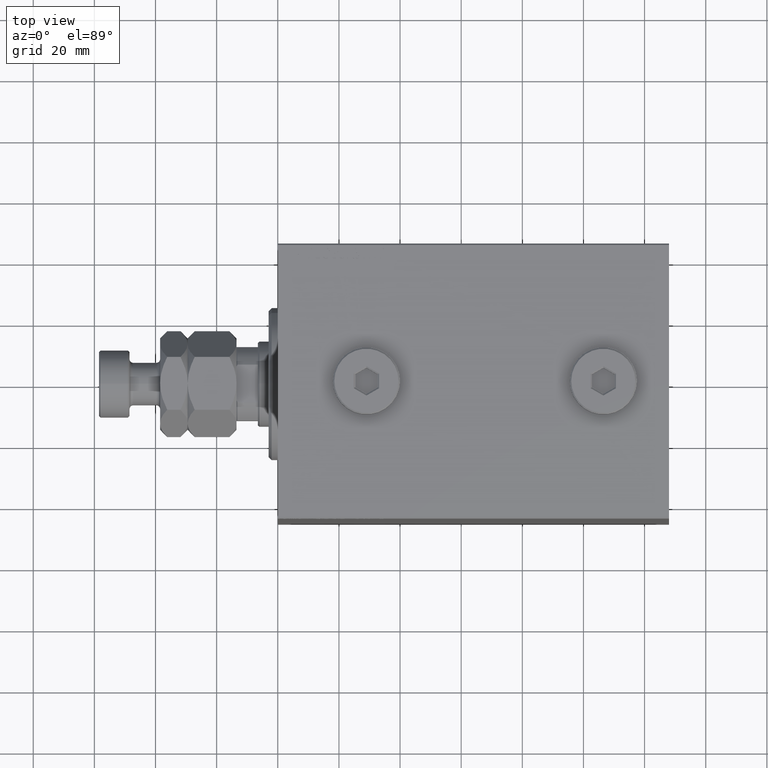
[diagram: clean part render]
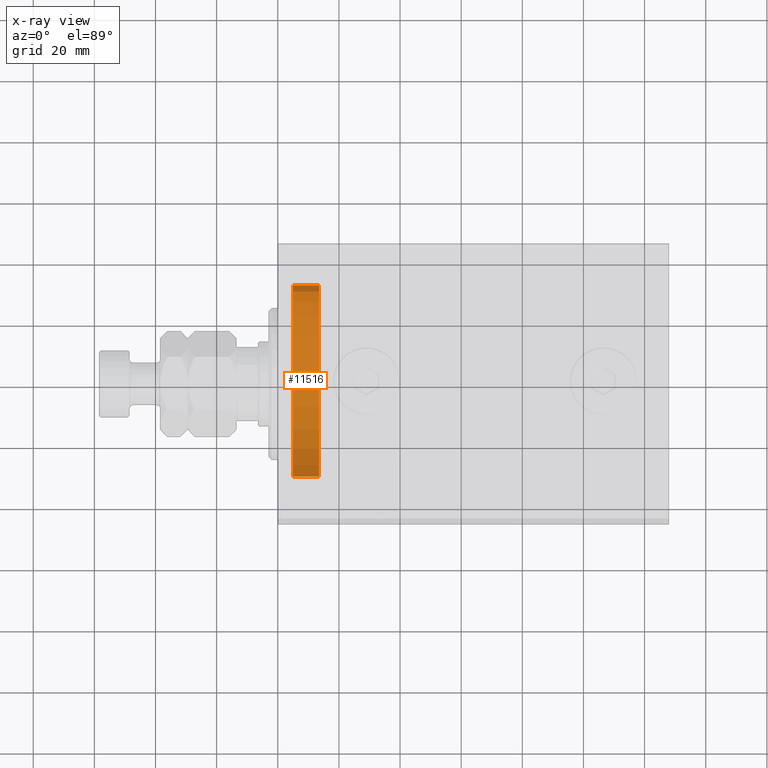
[diagram: x-ray — body ghosted, one internal face saturated and labeled with its STEP entity id]
A machine part, top view, then the same camera in x-ray: the body is ghosted and one INTERNAL B-rep face — a face not visible from any outside direction — is saturated and labeled: STEP entity #11516.
In plain terms, the highlighted cylindrical surface (partial cylindrical patch) has radius 32.5 mm, axis along (-1, 0, 0).
Its self-contained STEP definition (entity closure, byte-faithful):
#380 = AXIS2_PLACEMENT_3D ( 'NONE', #45614, #13505, #38708 ) ;
#657 = CARTESIAN_POINT ( 'NONE',  ( -5.000000000000000000, 0.000000000000000000, -32.50000000000000000 ) ) ;
#1183 = LINE ( 'NONE', #11647, #44932 ) ;
#1260 = AXIS2_PLACEMENT_3D ( 'NONE', #23852, #41441, #38339 ) ;
#2206 = CYLINDRICAL_SURFACE ( 'NONE', #1260, 32.50000000000000000 ) ;
#4760 = DIRECTION ( 'NONE',  ( 1.000000000000000000, -0.000000000000000000, -0.000000000000000000 ) ) ;
#9758 = VERTEX_POINT ( 'NONE', #26008 ) ;
#11516 = ADVANCED_FACE ( 'NONE', ( #26938 ), #2206, .T. ) ;
#11647 = CARTESIAN_POINT ( 'NONE',  ( -13.50000000000000178, 0.000000000000000000, -32.50000000000000000 ) ) ;
#12758 = CIRCLE ( 'NONE', #30977, 32.50000000000000000 ) ;
#13505 = DIRECTION ( 'NONE',  ( -1.000000000000000000, 0.000000000000000000, 0.000000000000000000 ) ) ;
#13705 = EDGE_CURVE ( 'NONE', #9758, #42597, #17079, .T. ) ;
#15059 = ORIENTED_EDGE ( 'NONE', *, *, #21206, .T. ) ;
#16796 = CARTESIAN_POINT ( 'NONE',  ( -5.000000000000000000, 3.980102097228898626E-15, 32.50000000000000000 ) ) ;
#17079 = CIRCLE ( 'NONE', #380, 32.50000000000000000 ) ;
#19081 = VERTEX_POINT ( 'NONE', #657 ) ;
#20411 = ORIENTED_EDGE ( 'NONE', *, *, #22841, .T. ) ;
#20703 = CARTESIAN_POINT ( 'NONE',  ( -5.000000000000000000, 0.000000000000000000, 0.000000000000000000 ) ) ;
#21206 = EDGE_CURVE ( 'NONE', #9758, #35193, #32674, .T. ) ;
#22841 = EDGE_CURVE ( 'NONE', #35193, #19081, #12758, .T. ) ;
#23502 = ORIENTED_EDGE ( 'NONE', *, *, #13705, .F. ) ;
#23852 = CARTESIAN_POINT ( 'NONE',  ( -13.50000000000000178, 0.000000000000000000, 0.000000000000000000 ) ) ;
#26008 = CARTESIAN_POINT ( 'NONE',  ( -13.50000000000000178, 3.980102097228898626E-15, 32.50000000000000000 ) ) ;
#26938 = FACE_OUTER_BOUND ( 'NONE', #44769, .T. ) ;
#27208 = ORIENTED_EDGE ( 'NONE', *, *, #36262, .F. ) ;
#30977 = AXIS2_PLACEMENT_3D ( 'NONE', #20703, #43029, #35898 ) ;
#32674 = LINE ( 'NONE', #36482, #40083 ) ;
#35193 = VERTEX_POINT ( 'NONE', #16796 ) ;
#35898 = DIRECTION ( 'NONE',  ( 0.000000000000000000, 0.000000000000000000, 1.000000000000000000 ) ) ;
#36113 = CARTESIAN_POINT ( 'NONE',  ( -13.50000000000000178, 0.000000000000000000, -32.50000000000000000 ) ) ;
#36262 = EDGE_CURVE ( 'NONE', #42597, #19081, #1183, .T. ) ;
#36482 = CARTESIAN_POINT ( 'NONE',  ( -13.50000000000000178, 3.980102097228898626E-15, 32.50000000000000000 ) ) ;
#38339 = DIRECTION ( 'NONE',  ( 0.000000000000000000, 0.000000000000000000, -1.000000000000000000 ) ) ;
#38708 = DIRECTION ( 'NONE',  ( 0.000000000000000000, 0.000000000000000000, 1.000000000000000000 ) ) ;
#40083 = VECTOR ( 'NONE', #46230, 1000.000000000000000 ) ;
#41441 = DIRECTION ( 'NONE',  ( 1.000000000000000000, -0.000000000000000000, -0.000000000000000000 ) ) ;
#42597 = VERTEX_POINT ( 'NONE', #36113 ) ;
#43029 = DIRECTION ( 'NONE',  ( -1.000000000000000000, 0.000000000000000000, 0.000000000000000000 ) ) ;
#44769 = EDGE_LOOP ( 'NONE', ( #23502, #15059, #20411, #27208 ) ) ;
#44932 = VECTOR ( 'NONE', #4760, 1000.000000000000000 ) ;
#45614 = CARTESIAN_POINT ( 'NONE',  ( -13.50000000000000178, 0.000000000000000000, 0.000000000000000000 ) ) ;
#46230 = DIRECTION ( 'NONE',  ( 1.000000000000000000, -0.000000000000000000, -0.000000000000000000 ) ) ;